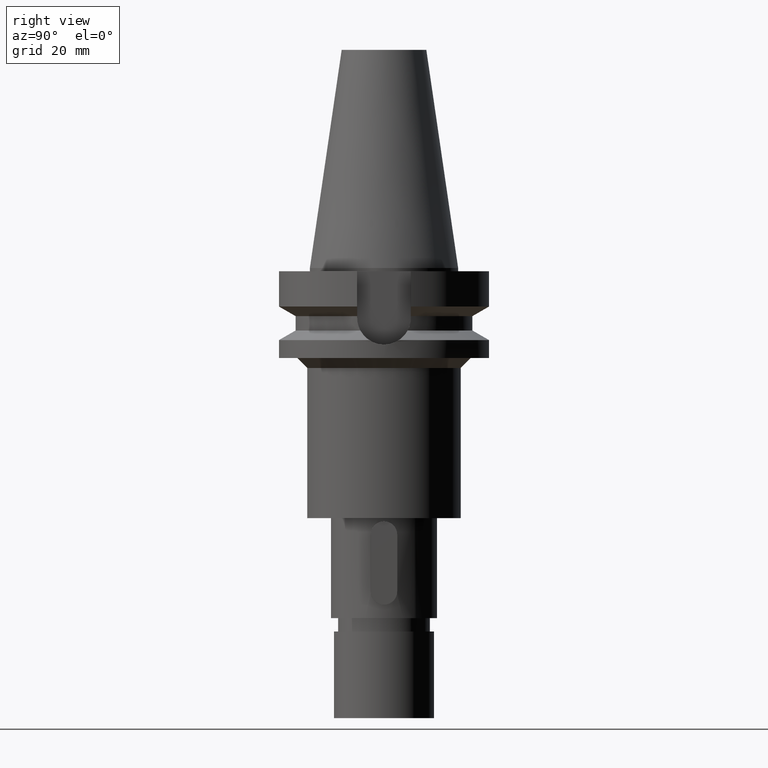
[diagram: clean part render]
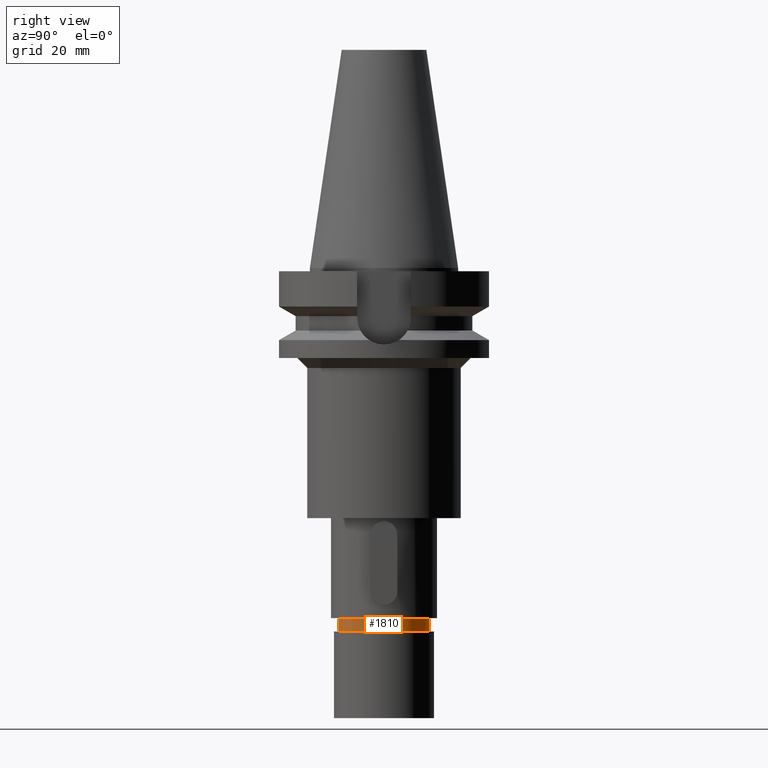
[diagram: same view with one face highlighted and labeled with its STEP entity id]
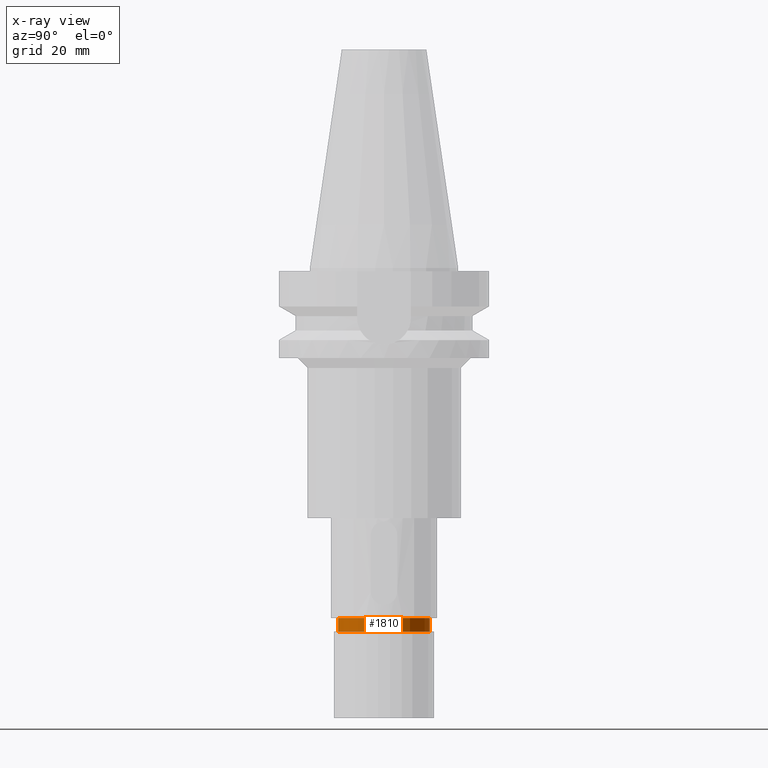
[diagram: x-ray of the same camera — body ghosted, the highlighted face saturated]
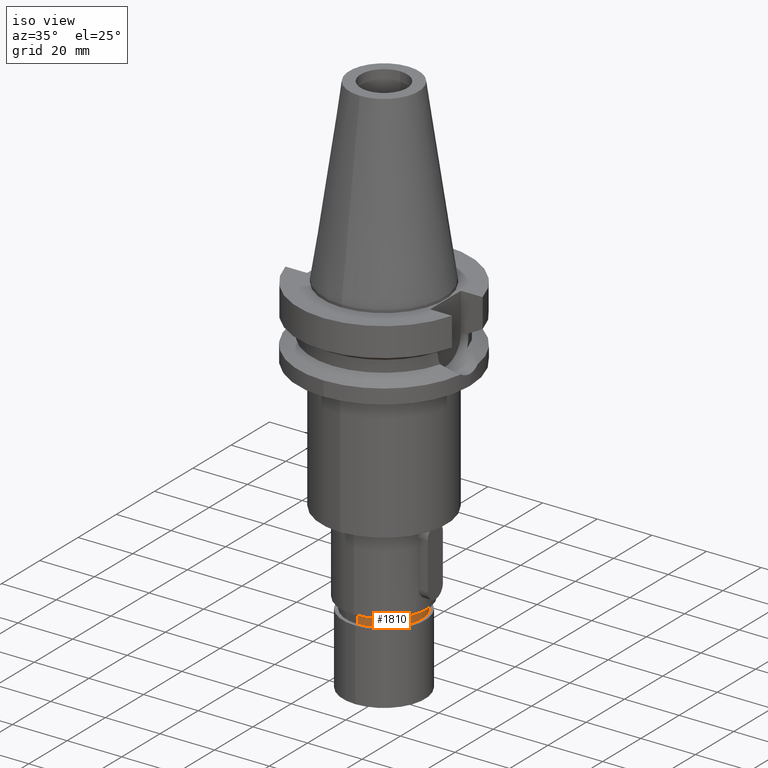
[diagram: same view with one face highlighted and labeled with its STEP entity id]
A machine part, right view. The second image highlights one B-rep face of the part: STEP entity #1810.
The next image is the same camera in x-ray: the body ghosted, the highlighted face saturated — about 0% of this face is hidden behind the body in this view.
A second angle (iso view) of the same face is appended — the face is thin or edge-on in the first view.
In plain terms, the highlighted cylindrical surface (partial cylindrical patch) has radius 13.75 mm, axis along (0, 0, -1).
Its self-contained STEP definition (entity closure, byte-faithful):
#770=CARTESIAN_POINT('',(0.E0,2.148275415064E-14,-1.05E2));
#771=DIRECTION('',(0.E0,0.E0,-1.E0));
#772=DIRECTION('',(0.E0,1.E0,0.E0));
#773=AXIS2_PLACEMENT_3D('',#770,#771,#772);
#786=DIRECTION('',(0.E0,0.E0,-1.E0));
#787=VECTOR('',#786,4.E0);
#788=CARTESIAN_POINT('',(0.E0,1.375E1,-1.05E2));
#789=LINE('',#788,#787);
#793=DIRECTION('',(0.E0,0.E0,-1.E0));
#794=VECTOR('',#793,4.E0);
#795=CARTESIAN_POINT('',(0.E0,-1.375E1,-1.05E2));
#796=LINE('',#795,#794);
#824=CARTESIAN_POINT('',(0.E0,2.148275415064E-14,-1.09E2));
#825=DIRECTION('',(0.E0,0.E0,1.E0));
#826=DIRECTION('',(0.E0,-1.E0,0.E0));
#827=AXIS2_PLACEMENT_3D('',#824,#825,#826);
#1202=CARTESIAN_POINT('',(0.E0,1.375E1,-1.05E2));
#1203=CARTESIAN_POINT('',(0.E0,-1.375E1,-1.05E2));
#1204=VERTEX_POINT('',#1202);
#1205=VERTEX_POINT('',#1203);
#1206=CARTESIAN_POINT('',(0.E0,1.375E1,-1.09E2));
#1207=VERTEX_POINT('',#1206);
#1208=CARTESIAN_POINT('',(0.E0,-1.375E1,-1.09E2));
#1209=VERTEX_POINT('',#1208);
#1796=CARTESIAN_POINT('',(0.E0,2.148275415064E-14,7.542E1));
#1797=DIRECTION('',(0.E0,0.E0,-1.E0));
#1798=DIRECTION('',(0.E0,-1.E0,0.E0));
#1799=AXIS2_PLACEMENT_3D('',#1796,#1797,#1798);
#1800=CYLINDRICAL_SURFACE('',#1799,1.375E1);
#1802=ORIENTED_EDGE('',*,*,#1801,.T.);
#1804=ORIENTED_EDGE('',*,*,#1803,.F.);
#1806=ORIENTED_EDGE('',*,*,#1805,.F.);
#1807=ORIENTED_EDGE('',*,*,#1789,.F.);
#1808=EDGE_LOOP('',(#1802,#1804,#1806,#1807));
#1809=FACE_OUTER_BOUND('',#1808,.F.);
#774=CIRCLE('',#773,1.375E1);
#828=CIRCLE('',#827,1.375E1);
#1789=EDGE_CURVE('',#1204,#1205,#774,.T.);
#1801=EDGE_CURVE('',#1204,#1207,#789,.T.);
#1803=EDGE_CURVE('',#1209,#1207,#828,.T.);
#1805=EDGE_CURVE('',#1205,#1209,#796,.T.);
#1810=ADVANCED_FACE('',(#1809),#1800,.T.);